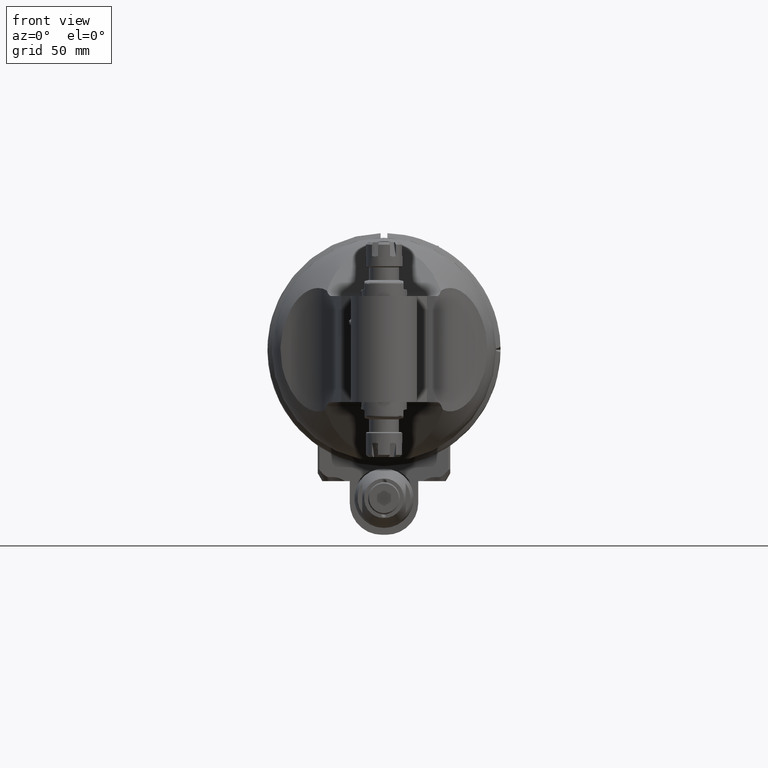
[diagram: clean part render]
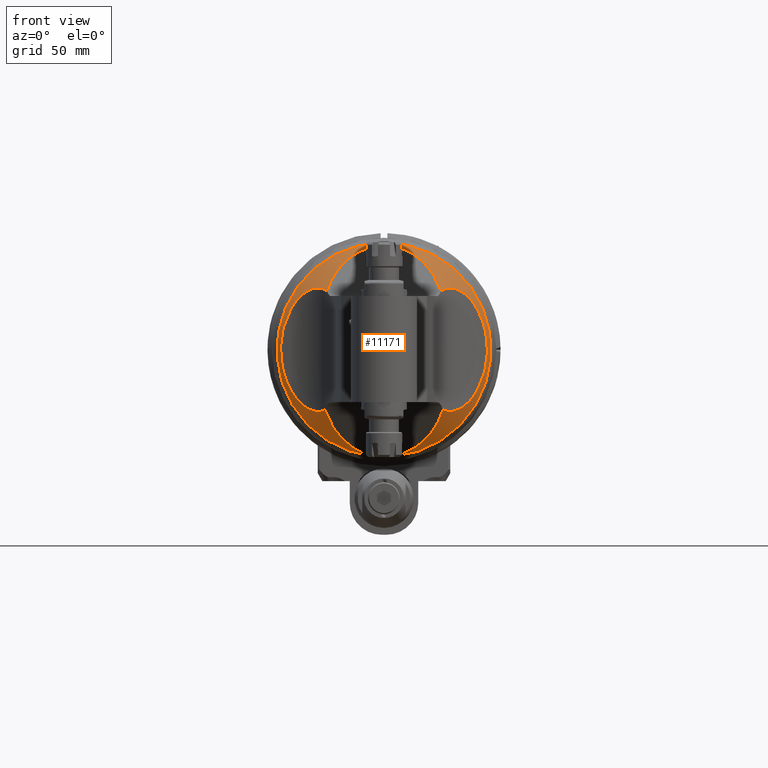
[diagram: same view with one face highlighted and labeled with its STEP entity id]
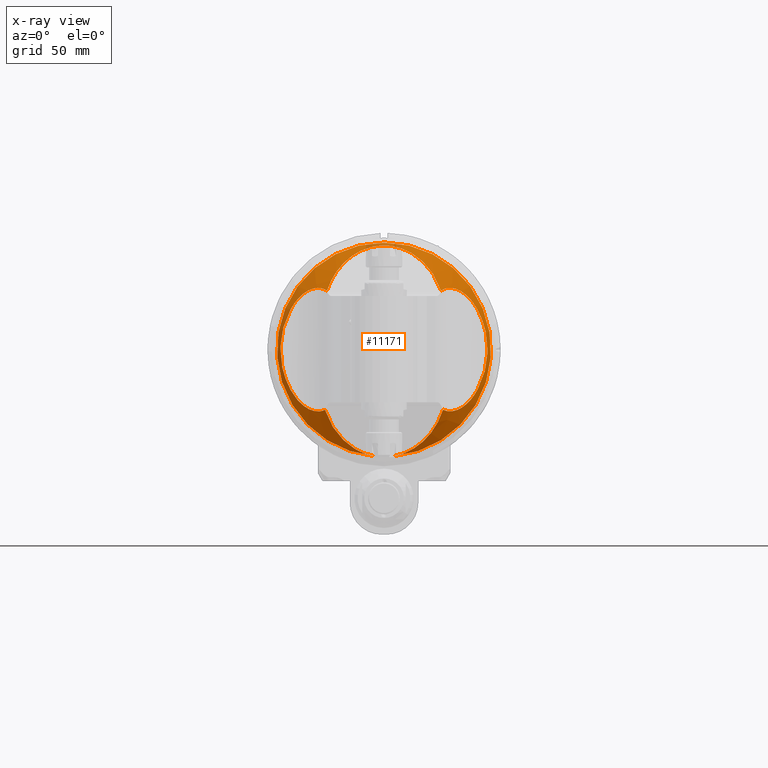
[diagram: x-ray of the same camera — body ghosted, the highlighted face saturated]
A machine part, front view. The second image highlights one B-rep face of the part: STEP entity #11171.
The next image is the same camera in x-ray: the body ghosted, the highlighted face saturated — about 2% of this face is hidden behind the body in this view.
In plain terms, the highlighted conical surface has half-angle 35 deg.
Its self-contained STEP definition (entity closure, byte-faithful):
#51=ELLIPSE('',#12314,37.3310363154756,26.6520960099003);
#53=ELLIPSE('',#12393,38.5129525458926,27.495912521784);
#54=ELLIPSE('',#12394,38.5129525458926,27.495912521784);
#55=ELLIPSE('',#12398,39.5168570021427,37.4925114331019);
#56=ELLIPSE('',#12399,39.5168570021427,37.4925114331019);
#214=B_SPLINE_CURVE_WITH_KNOTS('',3,(#21733,#21734,#21735,#21736,#21737,
#21738,#21739,#21740,#21741,#21742,#21743,#21744,#21745,#21746,#21747,#21748),
 .UNSPECIFIED.,.F.,.F.,(4,2,2,2,2,2,2,4),(-11.3679576426964,-11.1087200709386,
-10.8090962085518,-10.509472346165,-10.1518591663311,-9.79424598649715,
-9.20006866240719,-9.17254142138074),.UNSPECIFIED.);
#215=B_SPLINE_CURVE_WITH_KNOTS('',3,(#21752,#21753,#21754,#21755,#21756,
#21757,#21758,#21759,#21760,#21761,#21762,#21763,#21764,#21765,#21766,#21767),
 .UNSPECIFIED.,.F.,.F.,(4,2,2,2,2,2,2,4),(-5.66253195905697,-5.63500471786745,
-5.04082739377749,-4.68321421394355,-4.32560103410961,-4.02597717172281,
-3.72635330933602,-3.29785451749121),.UNSPECIFIED.);
#218=B_SPLINE_CURVE_WITH_KNOTS('',3,(#21796,#21797,#21798,#21799,#21800,
#21801,#21802,#21803,#21804,#21805,#21806,#21807,#21808,#21809,#21810,#21811),
 .UNSPECIFIED.,.F.,.F.,(4,2,2,2,2,2,2,4),(-4.11968217264611,-3.6911833808013,
-3.39155951841451,-3.09193565602771,-2.73432247619377,-2.37670929635983,
-1.78253197226987,-1.7550047310812),.UNSPECIFIED.);
#219=B_SPLINE_CURVE_WITH_KNOTS('',3,(#21815,#21816,#21817,#21818,#21819,
#21820,#21821,#21822,#21823,#21824,#21825,#21826,#21827,#21828,#21829,#21830),
 .UNSPECIFIED.,.F.,.F.,(4,2,2,2,2,2,2,4),(1.75500473105324,1.78253197226987,
2.37670929635983,2.73432247619377,3.09193565602771,3.39155951841451,3.6911833808013,
3.95042095255802),.UNSPECIFIED.);
#364=CONICAL_SURFACE('',#12395,41.34548221376,0.610865238198015);
#3066=FACE_OUTER_BOUND('',#3814,.T.);
#3814=EDGE_LOOP('',(#9885,#9886,#9887,#9888,#9889,#9890,#9891,#9892,#9893,
#9894,#9895));
#4493=CIRCLE('',#12396,46.82982453147);
#4494=CIRCLE('',#12397,46.82982453147);
#5416=VERTEX_POINT('',#21730);
#5417=VERTEX_POINT('',#21732);
#5418=VERTEX_POINT('',#21749);
#5419=VERTEX_POINT('',#21751);
#5422=VERTEX_POINT('',#21790);
#5423=VERTEX_POINT('',#21795);
#5424=VERTEX_POINT('',#21812);
#5425=VERTEX_POINT('',#21814);
#5484=VERTEX_POINT('',#22036);
#5485=VERTEX_POINT('',#22038);
#5486=VERTEX_POINT('',#22051);
#6889=EDGE_CURVE('',#5416,#5417,#214,.T.);
#6891=EDGE_CURVE('',#5418,#5419,#215,.T.);
#6896=EDGE_CURVE('',#5419,#5422,#51,.T.);
#6899=EDGE_CURVE('',#5422,#5423,#218,.T.);
#6901=EDGE_CURVE('',#5424,#5425,#219,.T.);
#6997=EDGE_CURVE('',#5484,#5416,#53,.T.);
#6998=EDGE_CURVE('',#5425,#5485,#54,.T.);
#7000=EDGE_CURVE('',#5486,#5484,#4493,.T.);
#7001=EDGE_CURVE('',#5485,#5486,#4494,.T.);
#7002=EDGE_CURVE('',#5423,#5424,#55,.T.);
#7003=EDGE_CURVE('',#5417,#5418,#56,.T.);
#9885=ORIENTED_EDGE('',*,*,#6997,.F.);
#9886=ORIENTED_EDGE('',*,*,#7000,.F.);
#9887=ORIENTED_EDGE('',*,*,#7001,.F.);
#9888=ORIENTED_EDGE('',*,*,#6998,.F.);
#9889=ORIENTED_EDGE('',*,*,#6901,.F.);
#9890=ORIENTED_EDGE('',*,*,#7002,.F.);
#9891=ORIENTED_EDGE('',*,*,#6899,.F.);
#9892=ORIENTED_EDGE('',*,*,#6896,.F.);
#9893=ORIENTED_EDGE('',*,*,#6891,.F.);
#9894=ORIENTED_EDGE('',*,*,#7003,.F.);
#9895=ORIENTED_EDGE('',*,*,#6889,.F.);
#11171=ADVANCED_FACE('',(#3066),#364,.T.);
#12314=AXIS2_PLACEMENT_3D('',#21791,#15124,#15125);
#12393=AXIS2_PLACEMENT_3D('',#22037,#15347,#15348);
#12394=AXIS2_PLACEMENT_3D('',#22039,#15349,#15350);
#12395=AXIS2_PLACEMENT_3D('',#22050,#15351,#15352);
#12396=AXIS2_PLACEMENT_3D('',#22052,#15353,#15354);
#12397=AXIS2_PLACEMENT_3D('',#22053,#15355,#15356);
#12398=AXIS2_PLACEMENT_3D('',#22054,#15357,#15358);
#12399=AXIS2_PLACEMENT_3D('',#22055,#15359,#15360);
#15124=DIRECTION('center_axis',(0.,-0.819152044289016,0.573576436351011));
#15125=DIRECTION('ref_axis',(3.6877533720233E-15,-0.573576436351011,-0.819152044289016));
#15347=DIRECTION('center_axis',(0.,-0.819152044289016,-0.573576436351011));
#15348=DIRECTION('ref_axis',(2.30618106633544E-16,0.573576436351011,-0.819152044289016));
#15349=DIRECTION('center_axis',(0.,-0.819152044289016,-0.573576436351011));
#15350=DIRECTION('ref_axis',(2.30618106633544E-16,0.573576436351011,-0.819152044289016));
#15351=DIRECTION('center_axis',(0.,1.,0.));
#15352=DIRECTION('ref_axis',(7.72837689819024E-13,0.,1.));
#15353=DIRECTION('center_axis',(0.,1.,0.));
#15354=DIRECTION('ref_axis',(-0.09073475048637,0.,-0.9958750951069));
#15355=DIRECTION('center_axis',(0.,1.,0.));
#15356=DIRECTION('ref_axis',(-0.09073475048637,0.,-0.9958750951069));
#15357=DIRECTION('center_axis',(-0.258819045102493,-0.965925826289076,0.));
#15358=DIRECTION('ref_axis',(-0.965925826289076,0.258819045102493,-2.84553889324E-15));
#15359=DIRECTION('center_axis',(0.258819045102493,-0.965925826289076,0.));
#15360=DIRECTION('ref_axis',(-0.965925826289076,-0.258819045102493,1.10789860746816E-14));
#21730=CARTESIAN_POINT('',(25.81853261668,82.67336442075,-26.31796038215));
#21732=CARTESIAN_POINT('',(40.85173814823,93.56092673656,-17.62419830655));
#21733=CARTESIAN_POINT('Ctrl Pts',(25.8185326166821,82.6733644207492,-26.3179603821482));
#21734=CARTESIAN_POINT('Ctrl Pts',(26.2980394523376,83.4068730928778,-26.5670459568276));
#21735=CARTESIAN_POINT('Ctrl Pts',(26.8275770681717,84.1347737707199,-26.7602403925626));
#21736=CARTESIAN_POINT('Ctrl Pts',(28.055709602424,85.6472281904293,-27.0206715689457));
#21737=CARTESIAN_POINT('Ctrl Pts',(28.769610398774,86.4245011192932,-27.0631655307252));
#21738=CARTESIAN_POINT('Ctrl Pts',(30.2539541892921,87.8591635096828,-26.928828024518));
#21739=CARTESIAN_POINT('Ctrl Pts',(31.0242980645363,88.5166108749215,-26.7515201873075));
#21740=CARTESIAN_POINT('Ctrl Pts',(32.6960679135348,89.7951384800515,-26.1431500897146));
#21741=CARTESIAN_POINT('Ctrl Pts',(33.6912935538658,90.453421209614,-25.6262824137681));
#21742=CARTESIAN_POINT('Ctrl Pts',(35.6027586369876,91.5495547345751,-24.2857621006101));
#21743=CARTESIAN_POINT('Ctrl Pts',(36.5181412902263,91.9912206823335,-23.4640109036862));
#21744=CARTESIAN_POINT('Ctrl Pts',(38.5992416820879,92.8871518613675,-21.2432134325854));
#21745=CARTESIAN_POINT('Ctrl Pts',(39.7397040921012,93.2569369743967,-19.6305258381362));
#21746=CARTESIAN_POINT('Ctrl Pts',(40.7622445582471,93.5368198444954,-17.7882881650128));
#21747=CARTESIAN_POINT('Ctrl Pts',(40.8071676968061,93.5489841200892,-17.7063995071778));
#21748=CARTESIAN_POINT('Ctrl Pts',(40.8517381482256,93.5609267365534,-17.6241983065466));
#21749=CARTESIAN_POINT('',(40.85173814904,93.56092673678,17.6241983051));
#21751=CARTESIAN_POINT('',(24.94381098088,81.23576313169,25.76485296668));
#21752=CARTESIAN_POINT('Ctrl Pts',(40.8517381490177,93.5609267367656,17.6241983050858));
#21753=CARTESIAN_POINT('Ctrl Pts',(40.8071676973384,93.5489841202334,17.7063995062076));
#21754=CARTESIAN_POINT('Ctrl Pts',(40.7622445585152,93.5368198445688,17.7882881645296));
#21755=CARTESIAN_POINT('Ctrl Pts',(39.7397040921012,93.2569369743966,19.6305258381362));
#21756=CARTESIAN_POINT('Ctrl Pts',(38.5992416820879,92.8871518613675,21.2432134325854));
#21757=CARTESIAN_POINT('Ctrl Pts',(36.5181412902263,91.9912206823335,23.4640109036862));
#21758=CARTESIAN_POINT('Ctrl Pts',(35.6027586369876,91.5495547345751,24.2857621006101));
#21759=CARTESIAN_POINT('Ctrl Pts',(33.6912935538658,90.453421209614,25.6262824137681));
#21760=CARTESIAN_POINT('Ctrl Pts',(32.6960679135348,89.7951384800515,26.1431500897146));
#21761=CARTESIAN_POINT('Ctrl Pts',(31.0242980645363,88.5166108749215,26.7515201873075));
#21762=CARTESIAN_POINT('Ctrl Pts',(30.2539541892921,87.8591635096828,26.928828024518));
#21763=CARTESIAN_POINT('Ctrl Pts',(28.769610398774,86.4245011192932,27.0631655307252));
#21764=CARTESIAN_POINT('Ctrl Pts',(28.055709602424,85.6472281904293,27.0206715689457));
#21765=CARTESIAN_POINT('Ctrl Pts',(26.4556150781762,83.6766997925111,26.6813641345671));
#21766=CARTESIAN_POINT('Ctrl Pts',(25.6262254767731,82.4436824331751,26.2814142669372));
#21767=CARTESIAN_POINT('Ctrl Pts',(24.943810980882,81.2357631316897,25.764852966678));
#21790=CARTESIAN_POINT('',(-24.94381098088,81.23576313169,25.76485296668));
#21791=CARTESIAN_POINT('Origin',(-4.44089209850063E-15,73.6932205359472,
14.9929857928144));
#21795=CARTESIAN_POINT('',(-40.85173814904,93.56092673678,17.62419830511));
#21796=CARTESIAN_POINT('Ctrl Pts',(-24.943810980882,81.2357631316897,25.764852966678));
#21797=CARTESIAN_POINT('Ctrl Pts',(-25.6262254767731,82.4436824331751,26.2814142669372));
#21798=CARTESIAN_POINT('Ctrl Pts',(-26.4556150781762,83.6766997925111,26.6813641345671));
#21799=CARTESIAN_POINT('Ctrl Pts',(-28.055709602424,85.6472281904293,27.0206715689457));
#21800=CARTESIAN_POINT('Ctrl Pts',(-28.769610398774,86.4245011192932,27.0631655307251));
#21801=CARTESIAN_POINT('Ctrl Pts',(-30.2539541892921,87.8591635096828,26.928828024518));
#21802=CARTESIAN_POINT('Ctrl Pts',(-31.0242980645363,88.5166108749215,26.7515201873075));
#21803=CARTESIAN_POINT('Ctrl Pts',(-32.6960679135348,89.7951384800515,26.1431500897146));
#21804=CARTESIAN_POINT('Ctrl Pts',(-33.6912935538658,90.453421209614,25.6262824137681));
#21805=CARTESIAN_POINT('Ctrl Pts',(-35.6027586369876,91.5495547345751,24.2857621006101));
#21806=CARTESIAN_POINT('Ctrl Pts',(-36.5181412902263,91.9912206823335,23.4640109036862));
#21807=CARTESIAN_POINT('Ctrl Pts',(-38.5992416820879,92.8871518613675,21.2432134325854));
#21808=CARTESIAN_POINT('Ctrl Pts',(-39.7397040921012,93.2569369743966,19.6305258381362));
#21809=CARTESIAN_POINT('Ctrl Pts',(-40.7622445585139,93.5368198445684,17.7882881645321));
#21810=CARTESIAN_POINT('Ctrl Pts',(-40.8071676973356,93.5489841202326,17.7063995062127));
#21811=CARTESIAN_POINT('Ctrl Pts',(-40.8517381490135,93.5609267367645,17.6241983050934));
#21812=CARTESIAN_POINT('',(-40.85173814931,93.56092673687,-17.62419830494));
#21814=CARTESIAN_POINT('',(-25.81853261668,82.67336442076,-26.31796038216));
#21815=CARTESIAN_POINT('Ctrl Pts',(-40.8517381491494,93.5609267368009,-17.6241983048429));
#21816=CARTESIAN_POINT('Ctrl Pts',(-40.8071676974269,93.5489841202573,-17.7063995060463));
#21817=CARTESIAN_POINT('Ctrl Pts',(-40.7622445585599,93.536819844581,-17.7882881644492));
#21818=CARTESIAN_POINT('Ctrl Pts',(-39.7397040921012,93.2569369743967,-19.6305258381362));
#21819=CARTESIAN_POINT('Ctrl Pts',(-38.5992416820879,92.8871518613675,-21.2432134325854));
#21820=CARTESIAN_POINT('Ctrl Pts',(-36.5181412902263,91.9912206823335,-23.4640109036862));
#21821=CARTESIAN_POINT('Ctrl Pts',(-35.6027586369876,91.5495547345751,-24.2857621006101));
#21822=CARTESIAN_POINT('Ctrl Pts',(-33.6912935538658,90.453421209614,-25.6262824137681));
#21823=CARTESIAN_POINT('Ctrl Pts',(-32.6960679135348,89.7951384800515,-26.1431500897146));
#21824=CARTESIAN_POINT('Ctrl Pts',(-31.0242980645363,88.5166108749215,-26.7515201873075));
#21825=CARTESIAN_POINT('Ctrl Pts',(-30.2539541892921,87.8591635096828,-26.928828024518));
#21826=CARTESIAN_POINT('Ctrl Pts',(-28.769610398774,86.4245011192932,-27.0631655307252));
#21827=CARTESIAN_POINT('Ctrl Pts',(-28.055709602424,85.6472281904293,-27.0206715689457));
#21828=CARTESIAN_POINT('Ctrl Pts',(-26.8275770681739,84.1347737707227,-26.7602403925631));
#21829=CARTESIAN_POINT('Ctrl Pts',(-26.2980394523418,83.4068730928836,-26.5670459568292));
#21830=CARTESIAN_POINT('Ctrl Pts',(-25.8185326166878,82.6733644207579,-26.3179603821512));
#22036=CARTESIAN_POINT('',(4.249092444111,96.90066823034,-46.63665595912));
#22037=CARTESIAN_POINT('Origin',(8.88178419700125E-15,75.0759093010523,
-15.4676699966277));
#22038=CARTESIAN_POINT('',(-4.249092444183,96.90066823034,-46.63665595911));
#22039=CARTESIAN_POINT('Origin',(8.88178419700125E-15,75.0759093010523,
-15.4676699966277));
#22050=CARTESIAN_POINT('Origin',(0.,89.06821568101,0.));
#22051=CARTESIAN_POINT('',(5.73499947170969E-15,96.90066823034,46.82982453147));
#22052=CARTESIAN_POINT('Origin',(0.,96.90066823034,0.));
#22053=CARTESIAN_POINT('Origin',(0.,96.90066823034,0.));
#22054=CARTESIAN_POINT('Origin',(-7.16152327802339,84.533660869252,0.));
#22055=CARTESIAN_POINT('Origin',(7.1615232780234,84.533660869252,8.88178419700125E-15));